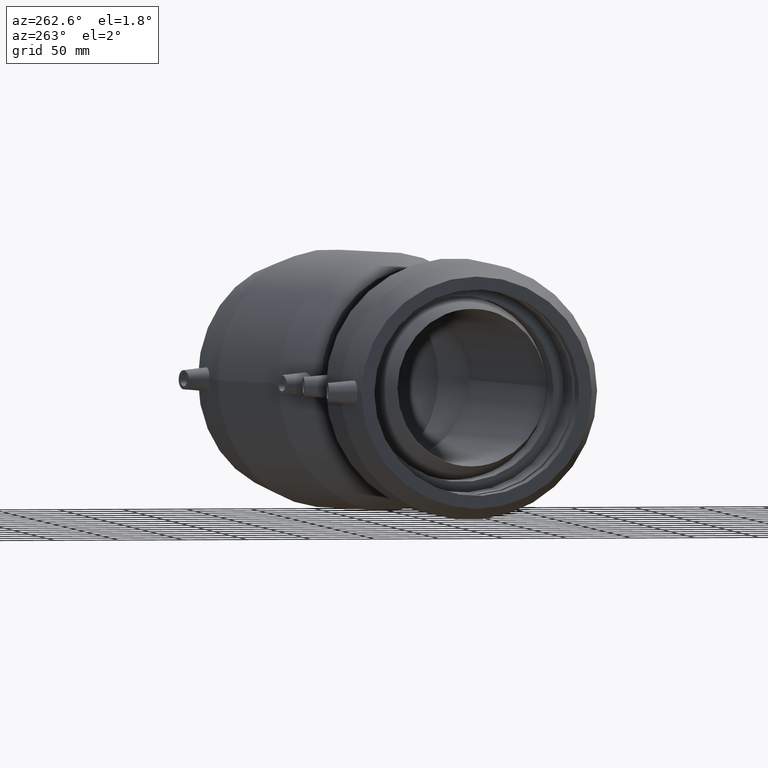
[diagram: clean part render]
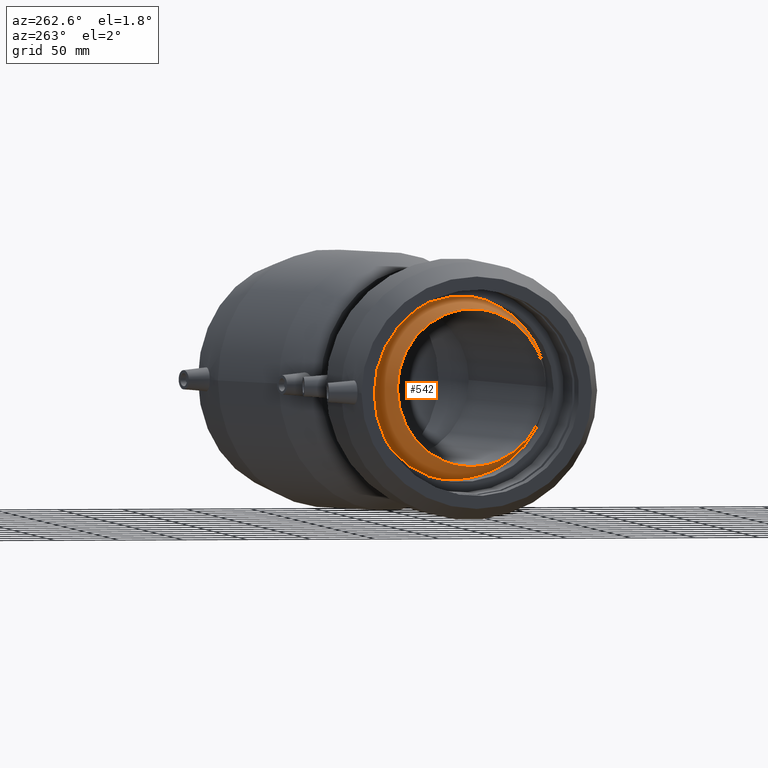
[diagram: same view with one face highlighted and labeled with its STEP entity id]
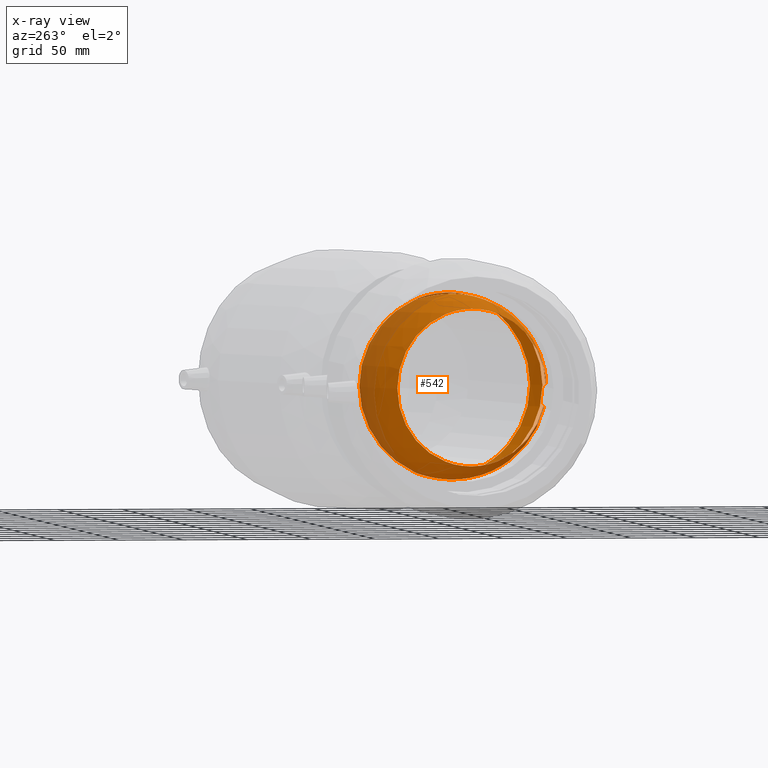
[diagram: x-ray of the same camera — body ghosted, the highlighted face saturated]
A machine part, auxiliary view. The second image highlights one B-rep face of the part: STEP entity #542.
The next image is the same camera in x-ray: the body ghosted, the highlighted face saturated — about 23% of this face is hidden behind the body in this view.
In plain terms, the highlighted spherical surface has radius 73.4775 mm.
Its self-contained STEP definition (entity closure, byte-faithful):
#64=FACE_BOUND('',#166,.T.);
#114=FACE_OUTER_BOUND('',#165,.T.);
#165=EDGE_LOOP('',(#432,#433,#434,#435));
#166=EDGE_LOOP('',(#436));
#265=B_SPLINE_CURVE_WITH_KNOTS('',3,(#1003,#1004,#1005,#1006,#1007,#1008,
#1009,#1010,#1011,#1012,#1013,#1014,#1015,#1016,#1017,#1018,#1019,#1020,
#1021,#1022,#1023,#1024,#1025,#1026,#1027,#1028,#1029,#1030,#1031,#1032,
#1033,#1034,#1035,#1036,#1037,#1038,#1039,#1040,#1041,#1042,#1043,#1044,
#1045,#1046,#1047,#1048,#1049,#1050,#1051,#1052,#1053),.UNSPECIFIED.,.F.,
 .F.,(4,2,2,2,2,2,2,2,2,3,2,2,2,2,2,2,2,2,2,2,2,2,2,2,4),(-4.55905898684212,
-4.00921230686826,-2.95232275769867,-2.10889129319676,-1.26545982869487,
-0.957305593955809,-0.649151359216752,-0.324575679608373,-0.162287839804186,
0.,0.162287839804189,0.324575679608379,0.649151359216757,0.957305593955814,
1.26545982869487,2.10889129319677,2.95232275769867,4.00921230686826,5.06610185603786,
6.12299140520745,7.17988095437704,8.88760185233042,10.5953227502838,12.3030436482372,
14.0107645461905),.UNSPECIFIED.);
#266=B_SPLINE_CURVE_WITH_KNOTS('',3,(#1056,#1057,#1058,#1059,#1060,#1061,
#1062,#1063,#1064,#1065,#1066,#1067,#1068,#1069,#1070,#1071,#1072,#1073,
#1074,#1075,#1076,#1077,#1078,#1079,#1080,#1081,#1082,#1083,#1084,#1085,
#1086,#1087,#1088,#1089,#1090,#1091,#1092,#1093,#1094,#1095,#1096,#1097,
#1098,#1099,#1100,#1101,#1102,#1103,#1104,#1105),.UNSPECIFIED.,.F.,.F.,
(4,2,2,2,2,2,2,2,2,2,2,2,2,2,2,2,2,2,2,2,2,2,2,2,4),(14.0107645461905,15.7184854441439,
17.4262063420973,19.1339272400506,20.841648138004,21.8985376871736,22.9554272363432,
24.0123167855128,25.0692063346824,25.9126377991843,26.7560692636862,27.0642234984253,
27.3723777331643,27.6969534127727,27.8592412525769,28.0215290923811,28.1838169321853,
28.3461047719894,28.6706804515978,28.9788346863369,29.2869889210759,30.1304203855778,
30.9738518500797,32.0307413992493,32.580588079538),.UNSPECIFIED.);
#274=CIRCLE('',#598,61.0290188278713);
#275=CIRCLE('',#599,71.2730112238208);
#276=CIRCLE('',#600,70.0690188278712);
#323=VERTEX_POINT('',#1000);
#324=VERTEX_POINT('',#1002);
#325=VERTEX_POINT('',#1054);
#326=VERTEX_POINT('',#1106);
#376=EDGE_CURVE('',#323,#323,#274,.T.);
#377=EDGE_CURVE('',#324,#323,#265,.T.);
#378=EDGE_CURVE('',#325,#324,#275,.T.);
#379=EDGE_CURVE('',#323,#325,#266,.T.);
#380=EDGE_CURVE('',#326,#326,#276,.T.);
#432=ORIENTED_EDGE('',*,*,#376,.F.);
#433=ORIENTED_EDGE('',*,*,#377,.F.);
#434=ORIENTED_EDGE('',*,*,#378,.F.);
#435=ORIENTED_EDGE('',*,*,#379,.F.);
#436=ORIENTED_EDGE('',*,*,#380,.T.);
#540=SPHERICAL_SURFACE('',#597,73.4774972792035);
#542=ADVANCED_FACE('',(#114,#64),#540,.T.);
#597=AXIS2_PLACEMENT_3D('',#999,#701,#702);
#598=AXIS2_PLACEMENT_3D('',#1001,#703,#704);
#599=AXIS2_PLACEMENT_3D('',#1055,#705,#706);
#600=AXIS2_PLACEMENT_3D('',#1107,#707,#708);
#701=DIRECTION('center_axis',(0.,0.,1.));
#702=DIRECTION('ref_axis',(1.,0.,0.));
#703=DIRECTION('center_axis',(-0.978147600733806,-0.20791169081776,0.));
#704=DIRECTION('ref_axis',(0.20791169081776,-0.978147600733806,0.));
#705=DIRECTION('center_axis',(-1.,-1.83697019872103E-16,0.));
#706=DIRECTION('ref_axis',(0.,0.,1.));
#707=DIRECTION('center_axis',(-0.978147600733806,-0.20791169081776,0.));
#708=DIRECTION('ref_axis',(0.20791169081776,-0.978147600733806,0.));
#999=CARTESIAN_POINT('Origin',(73.3366162918535,-3.79697942079588,0.));
#1000=CARTESIAN_POINT('',(46.,-71.9999999999999,0.));
#1001=CARTESIAN_POINT('Origin',(33.3113535065484,-12.3046116583794,0.));
#1002=CARTESIAN_POINT('',(91.1999999999999,-15.6143753586895,70.2864943083516));
#1003=CARTESIAN_POINT('Ctrl Pts',(91.2,-15.6143753586895,70.2864943083516));
#1004=CARTESIAN_POINT('Ctrl Pts',(90.8003462001159,-13.7341520583871,70.7041920845457));
#1005=CARTESIAN_POINT('Ctrl Pts',(90.386061500334,-11.8481780697973,71.0436821939862));
#1006=CARTESIAN_POINT('Ctrl Pts',(89.1344661490305,-6.36936712497037,71.8099801601386));
#1007=CARTESIAN_POINT('Ctrl Pts',(88.2591534157433,-2.80568877288531,72.0256143229539));
#1008=CARTESIAN_POINT('Ctrl Pts',(86.6011814267567,3.30767758422677,71.9751481545891));
#1009=CARTESIAN_POINT('Ctrl Pts',(85.7403757987026,6.26801095766267,71.7862437670943));
#1010=CARTESIAN_POINT('Ctrl Pts',(83.8150543631035,12.0694105756977,71.0414110183423));
#1011=CARTESIAN_POINT('Ctrl Pts',(82.7497367409649,14.9102791361529,70.486015860922));
#1012=CARTESIAN_POINT('Ctrl Pts',(81.1874136431494,18.3126238920296,69.6385534676993));
#1013=CARTESIAN_POINT('Ctrl Pts',(80.7027825328156,19.2977234756782,69.3728107249404));
#1014=CARTESIAN_POINT('Ctrl Pts',(79.6426510745661,21.2063895156008,68.813356566832));
#1015=CARTESIAN_POINT('Ctrl Pts',(79.0657954243929,22.1293290147483,68.5200754826462));
#1016=CARTESIAN_POINT('Ctrl Pts',(77.8560024871319,23.7670291220019,67.9699473036528));
#1017=CARTESIAN_POINT('Ctrl Pts',(77.1063646684884,24.6319268319707,67.6591717123988));
#1018=CARTESIAN_POINT('Ctrl Pts',(75.8166329648584,25.6203517167046,67.2883452646125));
#1019=CARTESIAN_POINT('Ctrl Pts',(75.3592172976937,25.898172049956,67.1813148429144));
#1020=CARTESIAN_POINT('Ctrl Pts',(74.3896529370727,26.2908563835269,67.0286151591875));
#1021=CARTESIAN_POINT('Ctrl Pts',(73.8775757578675,26.405931066567,66.9830337063626));
#1022=CARTESIAN_POINT('Ctrl Pts',(73.3366162918535,26.405931066567,66.9830337063626));
#1023=CARTESIAN_POINT('Ctrl Pts',(72.7956568258395,26.405931066567,66.9830337063626));
#1024=CARTESIAN_POINT('Ctrl Pts',(72.2835796466343,26.2908563835269,67.0286151591875));
#1025=CARTESIAN_POINT('Ctrl Pts',(71.3140152860132,25.898172049956,67.1813148429144));
#1026=CARTESIAN_POINT('Ctrl Pts',(70.8565996188485,25.6203517167047,67.2883452646125));
#1027=CARTESIAN_POINT('Ctrl Pts',(69.5668679152185,24.6319268319708,67.6591717123988));
#1028=CARTESIAN_POINT('Ctrl Pts',(68.817230096575,23.7670291220019,67.9699473036528));
#1029=CARTESIAN_POINT('Ctrl Pts',(67.607437159314,22.1293290147483,68.5200754826462));
#1030=CARTESIAN_POINT('Ctrl Pts',(67.0305815091409,21.2063895156008,68.813356566832));
#1031=CARTESIAN_POINT('Ctrl Pts',(65.9704500508913,19.2977234756782,69.3728107249404));
#1032=CARTESIAN_POINT('Ctrl Pts',(65.4858189405576,18.3126238920296,69.6385534676993));
#1033=CARTESIAN_POINT('Ctrl Pts',(63.9234958427421,14.9102791361529,70.486015860922));
#1034=CARTESIAN_POINT('Ctrl Pts',(62.8581782206034,12.0694105756977,71.0414110183423));
#1035=CARTESIAN_POINT('Ctrl Pts',(60.9328567850042,6.26801095766267,71.7862437670943));
#1036=CARTESIAN_POINT('Ctrl Pts',(60.0720511569502,3.30767758422675,71.9751481545891));
#1037=CARTESIAN_POINT('Ctrl Pts',(58.4140791679637,-2.8056887728853,72.0256143229539));
#1038=CARTESIAN_POINT('Ctrl Pts',(57.5387664346764,-6.36936712497035,71.8099801601386));
#1039=CARTESIAN_POINT('Ctrl Pts',(55.892201152101,-13.5771438893624,70.8018591041914));
#1040=CARTESIAN_POINT('Ctrl Pts',(55.1208316691565,-17.2212174141068,70.009385263579));
#1041=CARTESIAN_POINT('Ctrl Pts',(53.6898021496433,-24.3561853358952,67.8576506099921));
#1042=CARTESIAN_POINT('Ctrl Pts',(53.0293429590504,-27.850651690984,66.4973092883076));
#1043=CARTESIAN_POINT('Ctrl Pts',(51.8241980246811,-34.4873468742619,63.310140170032));
#1044=CARTESIAN_POINT('Ctrl Pts',(51.2794450596117,-37.6295438539717,61.4832714733689));
#1045=CARTESIAN_POINT('Ctrl Pts',(50.0085818169811,-45.1747746538974,56.3473772897975));
#1046=CARTESIAN_POINT('Ctrl Pts',(49.3067994356554,-49.5844465418777,52.5320707938449));
#1047=CARTESIAN_POINT('Ctrl Pts',(48.0996591960456,-57.4159227492814,43.8366013540868));
#1048=CARTESIAN_POINT('Ctrl Pts',(47.5938151897401,-60.8383815998053,38.9570954268719));
#1049=CARTESIAN_POINT('Ctrl Pts',(46.7891604111667,-66.3791080254027,28.5092690332164));
#1050=CARTESIAN_POINT('Ctrl Pts',(46.48927014312,-68.5038617703635,22.9288824155098));
#1051=CARTESIAN_POINT('Ctrl Pts',(46.0946348792188,-71.3147220252635,11.5205533619483));
#1052=CARTESIAN_POINT('Ctrl Pts',(46.,-71.9999999999999,5.69240299317791));
#1053=CARTESIAN_POINT('Ctrl Pts',(46.,-71.9999999999999,4.44089209850063E-15));
#1054=CARTESIAN_POINT('',(91.1999999999999,-15.6143753586895,-70.2864943083516));
#1055=CARTESIAN_POINT('Origin',(91.2,-3.79697942079587,0.));
#1056=CARTESIAN_POINT('Ctrl Pts',(46.,-71.9999999999999,6.66133814775094E-15));
#1057=CARTESIAN_POINT('Ctrl Pts',(46.,-71.9999999999999,-5.6924029931779));
#1058=CARTESIAN_POINT('Ctrl Pts',(46.0946348792188,-71.3147220252635,-11.5205533619483));
#1059=CARTESIAN_POINT('Ctrl Pts',(46.48927014312,-68.5038617703635,-22.9288824155098));
#1060=CARTESIAN_POINT('Ctrl Pts',(46.7891604111666,-66.3791080254027,-28.5092690332164));
#1061=CARTESIAN_POINT('Ctrl Pts',(47.59381518974,-60.8383815998053,-38.9570954268718));
#1062=CARTESIAN_POINT('Ctrl Pts',(48.0996591960456,-57.4159227492814,-43.8366013540867));
#1063=CARTESIAN_POINT('Ctrl Pts',(49.3067994356554,-49.5844465418777,-52.5320707938449));
#1064=CARTESIAN_POINT('Ctrl Pts',(50.0085818169811,-45.1747746538974,-56.3473772897975));
#1065=CARTESIAN_POINT('Ctrl Pts',(51.2794450596117,-37.6295438539717,-61.4832714733689));
#1066=CARTESIAN_POINT('Ctrl Pts',(51.8241980246811,-34.4873468742619,-63.310140170032));
#1067=CARTESIAN_POINT('Ctrl Pts',(53.0293429590503,-27.850651690984,-66.4973092883076));
#1068=CARTESIAN_POINT('Ctrl Pts',(53.6898021496433,-24.3561853358952,-67.8576506099921));
#1069=CARTESIAN_POINT('Ctrl Pts',(55.1208316691565,-17.2212174141068,-70.009385263579));
#1070=CARTESIAN_POINT('Ctrl Pts',(55.892201152101,-13.5771438893623,-70.8018591041914));
#1071=CARTESIAN_POINT('Ctrl Pts',(57.5387664346764,-6.36936712497031,-71.8099801601386));
#1072=CARTESIAN_POINT('Ctrl Pts',(58.4140791679637,-2.80568877288527,-72.0256143229539));
#1073=CARTESIAN_POINT('Ctrl Pts',(60.0720511569502,3.30767758422677,-71.9751481545891));
#1074=CARTESIAN_POINT('Ctrl Pts',(60.9328567850043,6.26801095766266,-71.7862437670943));
#1075=CARTESIAN_POINT('Ctrl Pts',(62.8581782206035,12.0694105756977,-71.0414110183423));
#1076=CARTESIAN_POINT('Ctrl Pts',(63.9234958427421,14.9102791361529,-70.486015860922));
#1077=CARTESIAN_POINT('Ctrl Pts',(65.4858189405576,18.3126238920296,-69.6385534676993));
#1078=CARTESIAN_POINT('Ctrl Pts',(65.9704500508913,19.2977234756783,-69.3728107249404));
#1079=CARTESIAN_POINT('Ctrl Pts',(67.0305815091408,21.2063895156008,-68.8133565668319));
#1080=CARTESIAN_POINT('Ctrl Pts',(67.607437159314,22.1293290147483,-68.5200754826462));
#1081=CARTESIAN_POINT('Ctrl Pts',(68.817230096575,23.7670291220019,-67.9699473036528));
#1082=CARTESIAN_POINT('Ctrl Pts',(69.5668679152186,24.6319268319708,-67.6591717123988));
#1083=CARTESIAN_POINT('Ctrl Pts',(70.8565996188485,25.6203517167046,-67.2883452646125));
#1084=CARTESIAN_POINT('Ctrl Pts',(71.3140152860133,25.898172049956,-67.1813148429144));
#1085=CARTESIAN_POINT('Ctrl Pts',(72.2835796466343,26.2908563835269,-67.0286151591875));
#1086=CARTESIAN_POINT('Ctrl Pts',(72.7956568258395,26.405931066567,-66.9830337063626));
#1087=CARTESIAN_POINT('Ctrl Pts',(73.8775757578675,26.405931066567,-66.9830337063626));
#1088=CARTESIAN_POINT('Ctrl Pts',(74.3896529370728,26.2908563835271,-67.0286151591874));
#1089=CARTESIAN_POINT('Ctrl Pts',(75.3592172976938,25.8981720499562,-67.1813148429144));
#1090=CARTESIAN_POINT('Ctrl Pts',(75.8166329648585,25.6203517167046,-67.2883452646125));
#1091=CARTESIAN_POINT('Ctrl Pts',(77.1063646684885,24.6319268319708,-67.6591717123988));
#1092=CARTESIAN_POINT('Ctrl Pts',(77.8560024871319,23.7670291220019,-67.9699473036528));
#1093=CARTESIAN_POINT('Ctrl Pts',(79.0657954243929,22.1293290147483,-68.5200754826462));
#1094=CARTESIAN_POINT('Ctrl Pts',(79.6426510745661,21.2063895156008,-68.813356566832));
#1095=CARTESIAN_POINT('Ctrl Pts',(80.7027825328157,19.2977234756783,-69.3728107249404));
#1096=CARTESIAN_POINT('Ctrl Pts',(81.1874136431494,18.3126238920296,-69.6385534676993));
#1097=CARTESIAN_POINT('Ctrl Pts',(82.7497367409649,14.9102791361529,-70.486015860922));
#1098=CARTESIAN_POINT('Ctrl Pts',(83.8150543631035,12.0694105756977,-71.0414110183423));
#1099=CARTESIAN_POINT('Ctrl Pts',(85.7403757987027,6.26801095766267,-71.7862437670943));
#1100=CARTESIAN_POINT('Ctrl Pts',(86.6011814267567,3.30767758422678,-71.9751481545891));
#1101=CARTESIAN_POINT('Ctrl Pts',(88.2591534157432,-2.80568877288525,-72.0256143229539));
#1102=CARTESIAN_POINT('Ctrl Pts',(89.1344661490305,-6.36936712497029,-71.8099801601386));
#1103=CARTESIAN_POINT('Ctrl Pts',(90.3860615005792,-11.8481780708707,-71.043682193836));
#1104=CARTESIAN_POINT('Ctrl Pts',(90.800346200096,-13.7341520582935,-70.7041920845665));
#1105=CARTESIAN_POINT('Ctrl Pts',(91.2,-15.6143753586894,-70.2864943083516));
#1106=CARTESIAN_POINT('',(109.540985034733,-67.7359056734706,0.));
#1107=CARTESIAN_POINT('Origin',(94.9728168562887,0.801936978783471,0.));